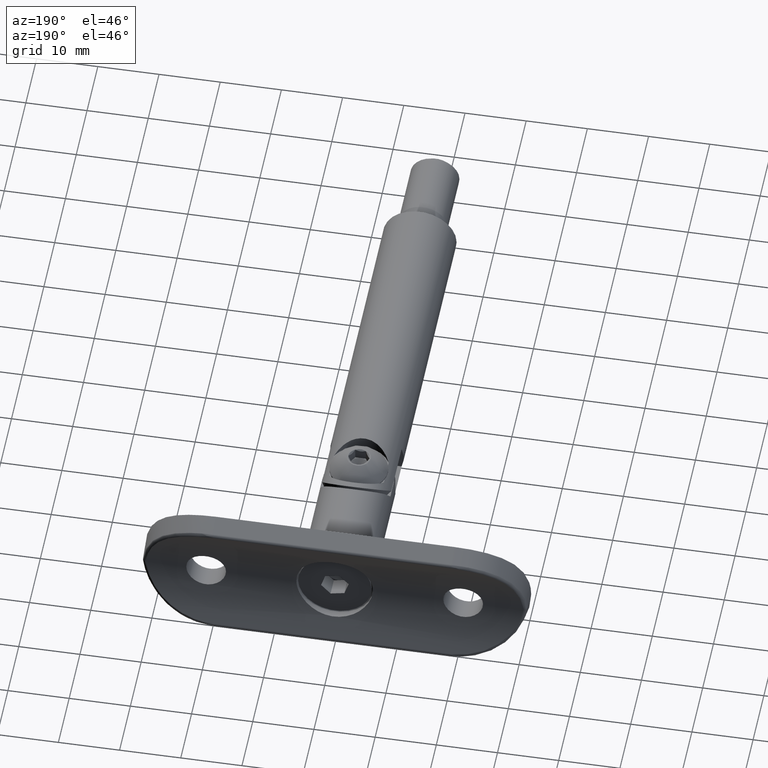
[diagram: clean part render]
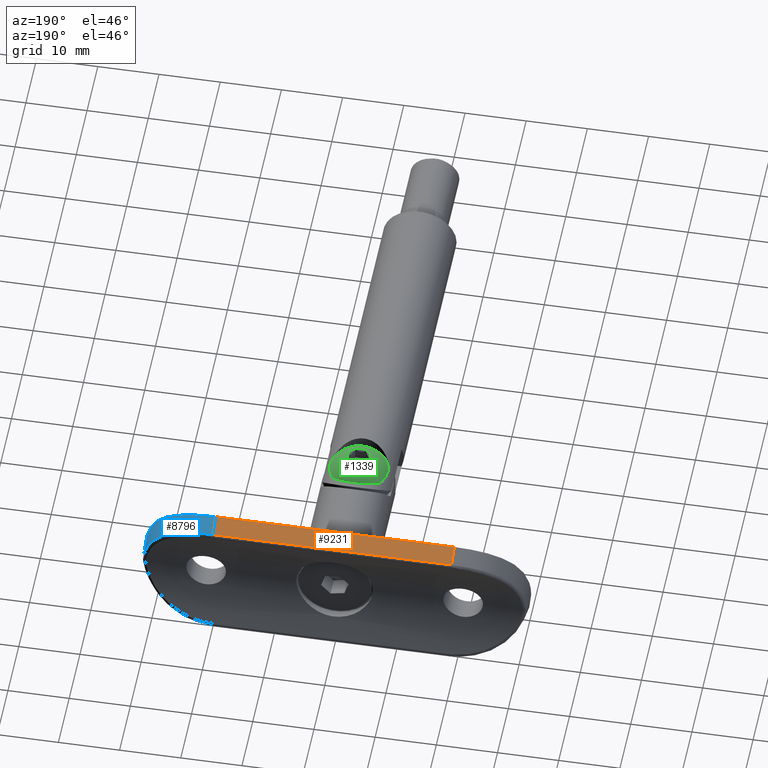
[diagram: same view with three faces highlighted in distinct colors, each labeled with its STEP entity id]
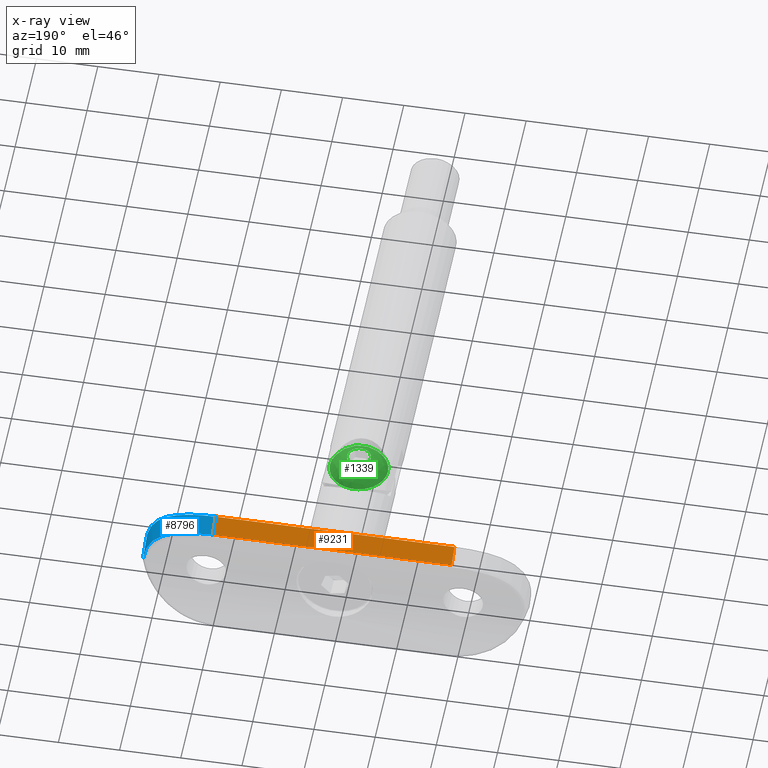
[diagram: x-ray of the same camera — body ghosted, the three highlighted faces saturated]
A machine part, auxiliary view with three faces highlighted in distinct colors.
The next image is the same camera in x-ray (body ghosted, the three faces saturated) — at least one of them is partly hidden behind the body in this view.
Their STEP definitions:

[orange] entity #9231 — the highlighted planar face has unit normal (0, -0.4858, -0.8741).
#418 = EDGE_CURVE ( 'NONE', #10432, #8950, #4552, .T. ) ;
#557 = PLANE ( 'NONE',  #15774 ) ;
#814 = VECTOR ( 'NONE', #5791, 1000.000000000000114 ) ;
#2687 = DIRECTION ( 'NONE',  ( -0.4858299595141711835, 0.8740533453047695245, 0.000000000000000000 ) ) ;
#4552 = LINE ( 'NONE', #7434, #13920 ) ;
#5026 = EDGE_CURVE ( 'NONE', #14542, #10432, #14489, .T. ) ;
#5355 = ORIENTED_EDGE ( 'NONE', *, *, #5026, .T. ) ;
#5530 = VECTOR ( 'NONE', #2687, 1000.000000000000114 ) ;
#5791 = DIRECTION ( 'NONE',  ( 0.4858299595141711835, -0.8740533453047695245, -0.000000000000000000 ) ) ;
#6583 = CARTESIAN_POINT ( 'NONE',  ( 12.00000000000000178, -0.3891176290278198779, -19.50000000000000355 ) ) ;
#6818 = CARTESIAN_POINT ( 'NONE',  ( 12.00000000000000178, -0.3891176290278198779, 31.50000000000000000 ) ) ;
#6991 = CARTESIAN_POINT ( 'NONE',  ( 10.53971119023871594, 2.238077944829625743, 19.50000000000000000 ) ) ;
#7046 = LINE ( 'NONE', #12947, #814 ) ;
#7170 = EDGE_CURVE ( 'NONE', #8950, #13179, #7046, .T. ) ;
#7434 = CARTESIAN_POINT ( 'NONE',  ( 10.53971119023871594, 2.238077944829626631, 19.50000000000000000 ) ) ;
#7628 = EDGE_CURVE ( 'NONE', #13179, #14542, #8632, .T. ) ;
#8632 = LINE ( 'NONE', #15902, #9406 ) ;
#8950 = VERTEX_POINT ( 'NONE', #6991 ) ;
#9231 = ADVANCED_FACE ( 'NONE', ( #15025 ), #557, .F. ) ;
#9406 = VECTOR ( 'NONE', #12247, 1000.000000000000000 ) ;
#9611 = EDGE_LOOP ( 'NONE', ( #5355, #10745, #13361, #10807 ) ) ;
#9731 = DIRECTION ( 'NONE',  ( 0.000000000000000000, 0.000000000000000000, 1.000000000000000000 ) ) ;
#9755 = CARTESIAN_POINT ( 'NONE',  ( 12.00000000000000178, -0.3891176290278198779, 19.50000000000000000 ) ) ;
#10432 = VERTEX_POINT ( 'NONE', #14620 ) ;
#10466 = DIRECTION ( 'NONE',  ( 0.4858299595141711835, -0.8740533453047695245, 0.000000000000000000 ) ) ;
#10513 = CARTESIAN_POINT ( 'NONE',  ( 12.00000000000000178, -0.3891176290278198779, -19.50000000000000355 ) ) ;
#10745 = ORIENTED_EDGE ( 'NONE', *, *, #418, .T. ) ;
#10807 = ORIENTED_EDGE ( 'NONE', *, *, #7628, .T. ) ;
#11724 = DIRECTION ( 'NONE',  ( -0.8740533453047696355, -0.4858299595141712390, 0.000000000000000000 ) ) ;
#12247 = DIRECTION ( 'NONE',  ( -0.000000000000000000, -0.000000000000000000, -1.000000000000000000 ) ) ;
#12947 = CARTESIAN_POINT ( 'NONE',  ( 12.00000000000000355, -0.3891176290278239858, 19.50000000000000000 ) ) ;
#13179 = VERTEX_POINT ( 'NONE', #9755 ) ;
#13361 = ORIENTED_EDGE ( 'NONE', *, *, #7170, .T. ) ;
#13920 = VECTOR ( 'NONE', #9731, 1000.000000000000000 ) ;
#14489 = LINE ( 'NONE', #6583, #5530 ) ;
#14542 = VERTEX_POINT ( 'NONE', #10513 ) ;
#14620 = CARTESIAN_POINT ( 'NONE',  ( 10.53971119023871594, 2.238077944829626187, -19.50000000000000355 ) ) ;
#15025 = FACE_OUTER_BOUND ( 'NONE', #9611, .T. ) ;
#15774 = AXIS2_PLACEMENT_3D ( 'NONE', #6818, #11724, #10466 ) ;
#15902 = CARTESIAN_POINT ( 'NONE',  ( 12.00000000000000178, -0.3891176290278198779, 31.50000000000000000 ) ) ;

[blue] entity #8796 — the highlighted cylindrical surface (partial cylindrical patch) has radius 12 mm, axis along (-0, 0.8741, -0.4858).
#44 = CARTESIAN_POINT ( 'NONE',  ( 11.92859431294146155, -0.4292547332370142965, -21.11482056701557752 ) ) ;
#946 = CARTESIAN_POINT ( 'NONE',  ( 0.3717157821171419574, -0.4643916539096136220, -31.36887278765312104 ) ) ;
#999 = CARTESIAN_POINT ( 'NONE',  ( 3.589126953104927242, -0.1425766935508010480, -30.53490663537369443 ) ) ;
#1073 = CARTESIAN_POINT ( 'NONE',  ( -4.165912745246785058E-15, -0.4701362392625519360, -31.40937530504016451 ) ) ;
#1231 = CARTESIAN_POINT ( 'NONE',  ( 12.00000000000000178, -0.3891176290278198779, -19.50000000000000355 ) ) ;
#1235 = CARTESIAN_POINT ( 'NONE',  ( 8.077189355929984771, -2.144204123385021976, -28.69694654420741742 ) ) ;
#1803 = FACE_OUTER_BOUND ( 'NONE', #4637, .T. ) ;
#1833 = CARTESIAN_POINT ( 'NONE',  ( -4.165912745246785058E-15, -0.4701362392625519360, -31.40937530504016451 ) ) ;
#2147 = CARTESIAN_POINT ( 'NONE',  ( -4.165912745246785058E-15, -0.4701362392625519360, -31.40937530504016451 ) ) ;
#2506 = CARTESIAN_POINT ( 'NONE',  ( 4.345683333910669965, -3.117644390435898138, -30.82586979659556548 ) ) ;
#2523 = ORIENTED_EDGE ( 'NONE', *, *, #5026, .F. ) ;
#2687 = DIRECTION ( 'NONE',  ( -0.4858299595141711835, 0.8740533453047695245, 0.000000000000000000 ) ) ;
#3281 = CARTESIAN_POINT ( 'NONE',  ( 5.507687913038736838, 0.2809070737397276196, -29.49489296990414999 ) ) ;
#3436 = CARTESIAN_POINT ( 'NONE',  ( 7.186626295999047009, 0.7838569578975459473, -28.13755154511082068 ) ) ;
#3510 = VERTEX_POINT ( 'NONE', #13334 ) ;
#3746 = CARTESIAN_POINT ( 'NONE',  ( 6.158843963928769760, -2.729662869301813455, -30.05830163374236719 ) ) ;
#4220 = CARTESIAN_POINT ( 'NONE',  ( -5.975428329596222389E-16, -3.499999999999999556, -31.50000000000000000 ) ) ;
#4439 = DIRECTION ( 'NONE',  ( -0.4858299595141712390, 0.8740533453047696355, 0.000000000000000000 ) ) ;
#4494 = DIRECTION ( 'NONE',  ( -0.8740533453047695245, -0.4858299595141712390, 0.000000000000000000 ) ) ;
#4591 = CARTESIAN_POINT ( 'NONE',  ( 10.53971119023871594, 2.238077944829626187, -19.50000000000000355 ) ) ;
#4615 = CARTESIAN_POINT ( 'NONE',  ( 0.8129412476029719281, -3.500000000000001332, -31.50000000000000711 ) ) ;
#4637 = EDGE_LOOP ( 'NONE', ( #13433, #16029, #2523, #12936 ) ) ;
#4700 = CARTESIAN_POINT ( 'NONE',  ( 4.567942503128776366, 0.05582271291679386654, -30.05491169464928447 ) ) ;
#4850 = CARTESIAN_POINT ( 'NONE',  ( 10.86486654361806181, -0.9843359645018946447, -24.95505419486224596 ) ) ;
#4950 = CARTESIAN_POINT ( 'NONE',  ( 9.653965207986139774, -1.536749814308946638, -26.98022621720533465 ) ) ;
#4999 = CARTESIAN_POINT ( 'NONE',  ( 9.882580253765647527, -1.437978920396823845, -26.65824030469762462 ) ) ;
#5026 = EDGE_CURVE ( 'NONE', #14542, #10432, #14489, .T. ) ;
#5062 = CARTESIAN_POINT ( 'NONE',  ( 11.64506833623742565, -0.5832138593540771021, -22.69272106915794751 ) ) ;
#5472 = CARTESIAN_POINT ( 'NONE',  ( -3.269338926805214492E-15, -2.486856761535503946, -31.50000000000000000 ) ) ;
#5530 = VECTOR ( 'NONE', #2687, 1000.000000000000114 ) ;
#5640 = CARTESIAN_POINT ( 'NONE',  ( -3.718901014066856788E-15, -1.475628161315674092, -31.46975366199063728 ) ) ;
#5724 = AXIS2_PLACEMENT_3D ( 'NONE', #10744, #4439, #4494 ) ;
#5952 = CARTESIAN_POINT ( 'NONE',  ( 10.04062280470157376, 1.982199962630018186, -23.14366967859936963 ) ) ;
#6146 = B_SPLINE_CURVE_WITH_KNOTS ( 'NONE', 3,
 ( #2147, #946, #12052, #15875, #14497, #12213, #999, #4700, #9770, #3281, #14668, #15997, #3436, #7248, #10902, #10841, #8470, #13256, #7202, #11994, #5952, #9659, #13429, #14617, #13365, #4591 ),
 .UNSPECIFIED., .F., .F.,
 ( 4, 2, 2, 2, 2, 2, 2, 2, 2, 2, 2, 2, 4 ),
 ( 3.008635295775243735E-19, 0.001118234125172541020, 0.002236468250345082041, 0.004472936500690163214, 0.005591170625862701415, 0.006709404751035240484, 0.008945873001380317754, 0.01006410712655285596, 0.01118234125172539069, 0.01341880950207046189, 0.01453704362724299835, 0.01565527775241553482, 0.01789174600276060081 ),
 .UNSPECIFIED. ) ;
#6583 = CARTESIAN_POINT ( 'NONE',  ( 12.00000000000000178, -0.3891176290278198779, -19.50000000000000355 ) ) ;
#6612 = EDGE_CURVE ( 'NONE', #3510, #14542, #14700, .T. ) ;
#6893 = EDGE_CURVE ( 'NONE', #7126, #3510, #14852, .T. ) ;
#7126 = VERTEX_POINT ( 'NONE', #1073 ) ;
#7202 = CARTESIAN_POINT ( 'NONE',  ( 9.569349463060191852, 1.752852787617590558, -24.53899358220072102 ) ) ;
#7205 = EDGE_CURVE ( 'NONE', #7126, #10432, #6146, .T. ) ;
#7248 = CARTESIAN_POINT ( 'NONE',  ( 7.894751655761194087, 1.043563230655478513, -27.32195453554994558 ) ) ;
#7336 = CARTESIAN_POINT ( 'NONE',  ( 8.365447555507348198, -2.042077026027277586, -28.43512920070712724 ) ) ;
#7499 = CARTESIAN_POINT ( 'NONE',  ( 10.51579242464841357, -1.154463491023566490, -25.65865357391695412 ) ) ;
#8038 = CYLINDRICAL_SURFACE ( 'NONE', #5724, 12.00000000000000178 ) ;
#8470 = CARTESIAN_POINT ( 'NONE',  ( 8.732631405510833389, 1.380105572080483789, -26.13792390336023530 ) ) ;
#8613 = CARTESIAN_POINT ( 'NONE',  ( 8.911261608662778499, -1.838321853592151500, -27.88239206832154693 ) ) ;
#8796 = ADVANCED_FACE ( 'NONE', ( #1803 ), #8038, .T. ) ;
#9659 = CARTESIAN_POINT ( 'NONE',  ( 10.22228452745749472, 2.073518088803388615, -22.43040518664165717 ) ) ;
#9770 = CARTESIAN_POINT ( 'NONE',  ( 4.886493709250088635, 0.1276570117640407898, -29.87927491249999790 ) ) ;
#9910 = CARTESIAN_POINT ( 'NONE',  ( 3.961919930534429479, -3.183324947430789642, -30.94830242344761828 ) ) ;
#10432 = VERTEX_POINT ( 'NONE', #14620 ) ;
#10513 = CARTESIAN_POINT ( 'NONE',  ( 12.00000000000000178, -0.3891176290278198779, -19.50000000000000355 ) ) ;
#10744 = CARTESIAN_POINT ( 'NONE',  ( 1.511359856342766150, -6.219077143197874413, -19.50000000000000355 ) ) ;
#10810 = CARTESIAN_POINT ( 'NONE',  ( -5.975428329596222389E-16, -3.499999999999999556, -31.50000000000000000 ) ) ;
#10841 = CARTESIAN_POINT ( 'NONE',  ( 8.538757616669146344, 1.298744972214026738, -26.44274779239511375 ) ) ;
#10869 = CARTESIAN_POINT ( 'NONE',  ( 3.186978305075531370, -3.296663330154672611, -31.15440249755115332 ) ) ;
#10902 = CARTESIAN_POINT ( 'NONE',  ( 8.119630012388041607, 1.130367664769255986, -27.03523480616932773 ) ) ;
#11207 = CARTESIAN_POINT ( 'NONE',  ( 5.458459083564774161, -2.901169967168792496, -30.40738950800777474 ) ) ;
#11268 = CARTESIAN_POINT ( 'NONE',  ( 9.168815601873276933, -1.736688008828345620, -27.59147257706480971 ) ) ;
#11994 = CARTESIAN_POINT ( 'NONE',  ( 9.933564340798477943, 1.929111303165168767, -23.49922711695877808 ) ) ;
#12052 = CARTESIAN_POINT ( 'NONE',  ( 0.7404109976856186881, -0.4496605161124914152, -31.31444628284846132 ) ) ;
#12213 = CARTESIAN_POINT ( 'NONE',  ( 2.905809991406898884, -0.2520860244392658100, -30.79258430663401924 ) ) ;
#12300 = CARTESIAN_POINT ( 'NONE',  ( 11.42949741348638426, -0.6987825248718153581, -23.47544721763576803 ) ) ;
#12467 = CARTESIAN_POINT ( 'NONE',  ( 12.00000000000000533, -0.3891176290278224870, -20.31369094222388938 ) ) ;
#12936 = ORIENTED_EDGE ( 'NONE', *, *, #6612, .F. ) ;
#13256 = CARTESIAN_POINT ( 'NONE',  ( 9.269901498195480372, 1.612828249825286830, -25.19844563057117881 ) ) ;
#13330 = CARTESIAN_POINT ( 'NONE',  ( 1.613878791505601207, -3.459937399638181699, -31.43733599986672189 ) ) ;
#13334 = CARTESIAN_POINT ( 'NONE',  ( -5.975428329596222389E-16, -3.499999999999999556, -31.50000000000000000 ) ) ;
#13365 = CARTESIAN_POINT ( 'NONE',  ( 10.53971119023872127, 2.238077944829627519, -20.24777137648276337 ) ) ;
#13429 = CARTESIAN_POINT ( 'NONE',  ( 10.29759581758889198, 2.112088555418223379, -22.07087987615994251 ) ) ;
#13433 = ORIENTED_EDGE ( 'NONE', *, *, #6893, .F. ) ;
#13713 = CARTESIAN_POINT ( 'NONE',  ( 7.468358965609676048, -2.346049953370364705, -29.19099359684591377 ) ) ;
#14489 = LINE ( 'NONE', #6583, #5530 ) ;
#14497 = CARTESIAN_POINT ( 'NONE',  ( 1.835189502875478773, -0.3711457551946621969, -31.09134747255644626 ) ) ;
#14542 = VERTEX_POINT ( 'NONE', #10513 ) ;
#14617 = CARTESIAN_POINT ( 'NONE',  ( 10.47855176280993028, 2.205503992355610343, -20.98378448394305096 ) ) ;
#14620 = CARTESIAN_POINT ( 'NONE',  ( 10.53971119023871594, 2.238077944829626187, -19.50000000000000355 ) ) ;
#14668 = CARTESIAN_POINT ( 'NONE',  ( 5.807837735107582056, 0.3617548896867346375, -29.28748829787575403 ) ) ;
#14700 = B_SPLINE_CURVE_WITH_KNOTS ( 'NONE', 3,
 ( #10810, #4615, #13330, #15843, #10869, #9910, #2506, #11207, #3746, #14867, #13713, #1235, #7336, #8613, #11268, #4950, #4999, #7499, #4850, #12300, #5062, #44, #12467, #1231 ),
 .UNSPECIFIED., .F., .F.,
 ( 4, 2, 2, 2, 2, 2, 2, 2, 2, 2, 2, 4 ),
 ( 1.018549874411314213E-19, 0.002407596472457979985, 0.003611394708686971496, 0.004815192944915964307, 0.007222789417373949930, 0.008426587653602947078, 0.009630385889831942492, 0.01083418412606093964, 0.01203798236228993505, 0.01444557883474792935, 0.01685317530720592538, 0.01926077177966391968 ),
 .UNSPECIFIED. ) ;
#14852 =( BOUNDED_CURVE ( )  B_SPLINE_CURVE ( 3, ( #1833, #5640, #5472, #4220 ),
 .UNSPECIFIED., .F., .F. ) 
 B_SPLINE_CURVE_WITH_KNOTS ( ( 4, 4 ),
 ( 1.447820046972164931, 1.570796326794896558 ),
 .UNSPECIFIED. ) 
 CURVE ( )  GEOMETRIC_REPRESENTATION_ITEM ( )  RATIONAL_B_SPLINE_CURVE ( ( 1.000000000000000000, 0.9987401332329099990, 0.9987401332329099990, 1.000000000000000000 ) ) 
 REPRESENTATION_ITEM ( '' )  );
#14867 = CARTESIAN_POINT ( 'NONE',  ( 7.147371149447641514, -2.445773758848734936, -29.42307681136129460 ) ) ;
#15843 = CARTESIAN_POINT ( 'NONE',  ( 2.796109589762970860, -3.344419946068636129, -31.23832297120842583 ) ) ;
#15875 = CARTESIAN_POINT ( 'NONE',  ( 1.471476261503985805, -0.4031192296362735017, -31.17588060939954886 ) ) ;
#15997 = CARTESIAN_POINT ( 'NONE',  ( 6.665760389367128447, 0.6098249306462657504, -28.62862387784112173 ) ) ;
#16029 = ORIENTED_EDGE ( 'NONE', *, *, #7205, .T. ) ;

[green] entity #1339 — the highlighted spherical surface has radius 5.2873 mm.
#519 = CIRCLE ( 'NONE', #8203, 1.933000807568895141 ) ;
#839 = CARTESIAN_POINT ( 'NONE',  ( 5.273559366969493567E-16, 2.599049999999998750, -4.750000000000039968 ) ) ;
#1339 = ADVANCED_FACE ( 'NONE', ( #11768, #10585 ), #4742, .T. ) ;
#2085 = EDGE_CURVE ( 'NONE', #15397, #15397, #10855, .T. ) ;
#2712 = AXIS2_PLACEMENT_3D ( 'NONE', #5638, #15663, #14350 ) ;
#3549 = DIRECTION ( 'NONE',  ( 1.110223024625147049E-16, 0.000000000000000000, -1.000000000000000000 ) ) ;
#4742 = SPHERICAL_SURFACE ( 'NONE', #11035, 5.287252652107483186 ) ;
#4855 = CARTESIAN_POINT ( 'NONE',  ( 0.000000000000000000, 4.921234447286135349, 0.000000000000000000 ) ) ;
#5270 = VERTEX_POINT ( 'NONE', #13382 ) ;
#5638 = CARTESIAN_POINT ( 'NONE',  ( 0.000000000000000000, 2.599049999999998750, 0.000000000000000000 ) ) ;
#6167 = EDGE_LOOP ( 'NONE', ( #15739 ) ) ;
#8203 = AXIS2_PLACEMENT_3D ( 'NONE', #9824, #14892, #3549 ) ;
#8996 = DIRECTION ( 'NONE',  ( 1.000000000000000000, 0.000000000000000000, 1.110223024625147296E-16 ) ) ;
#9824 = CARTESIAN_POINT ( 'NONE',  ( 0.000000000000000000, 0.000000000000000000, 0.000000000000000000 ) ) ;
#10585 = FACE_OUTER_BOUND ( 'NONE', #13556, .T. ) ;
#10855 = CIRCLE ( 'NONE', #2712, 4.750000000000039968 ) ;
#11035 = AXIS2_PLACEMENT_3D ( 'NONE', #4855, #11328, #8996 ) ;
#11328 = DIRECTION ( 'NONE',  ( -1.110223024625147296E-16, 0.000000000000000000, 1.000000000000000000 ) ) ;
#11768 = FACE_OUTER_BOUND ( 'NONE', #6167, .T. ) ;
#13382 = CARTESIAN_POINT ( 'NONE',  ( 2.146062003181990707E-16, 0.000000000000000000, -1.933000807568895141 ) ) ;
#13556 = EDGE_LOOP ( 'NONE', ( #15775 ) ) ;
#14350 = DIRECTION ( 'NONE',  ( 1.110223024625147173E-16, 0.000000000000000000, -1.000000000000000000 ) ) ;
#14418 = EDGE_CURVE ( 'NONE', #5270, #5270, #519, .T. ) ;
#14892 = DIRECTION ( 'NONE',  ( 0.000000000000000000, -1.000000000000000000, 0.000000000000000000 ) ) ;
#15397 = VERTEX_POINT ( 'NONE', #839 ) ;
#15663 = DIRECTION ( 'NONE',  ( 0.000000000000000000, -1.000000000000000000, 0.000000000000000000 ) ) ;
#15739 = ORIENTED_EDGE ( 'NONE', *, *, #2085, .T. ) ;
#15775 = ORIENTED_EDGE ( 'NONE', *, *, #14418, .F. ) ;